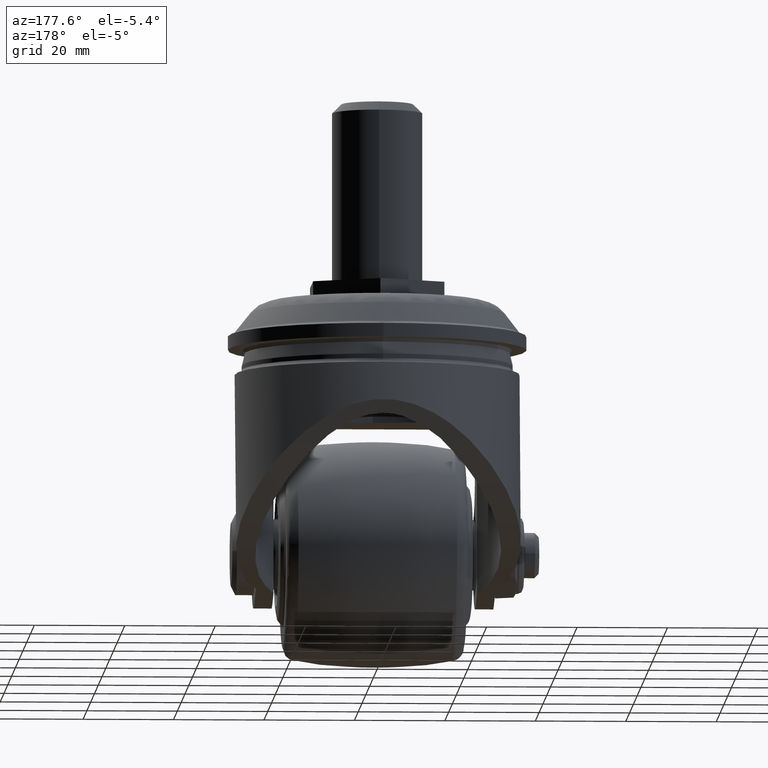
[diagram: clean part render]
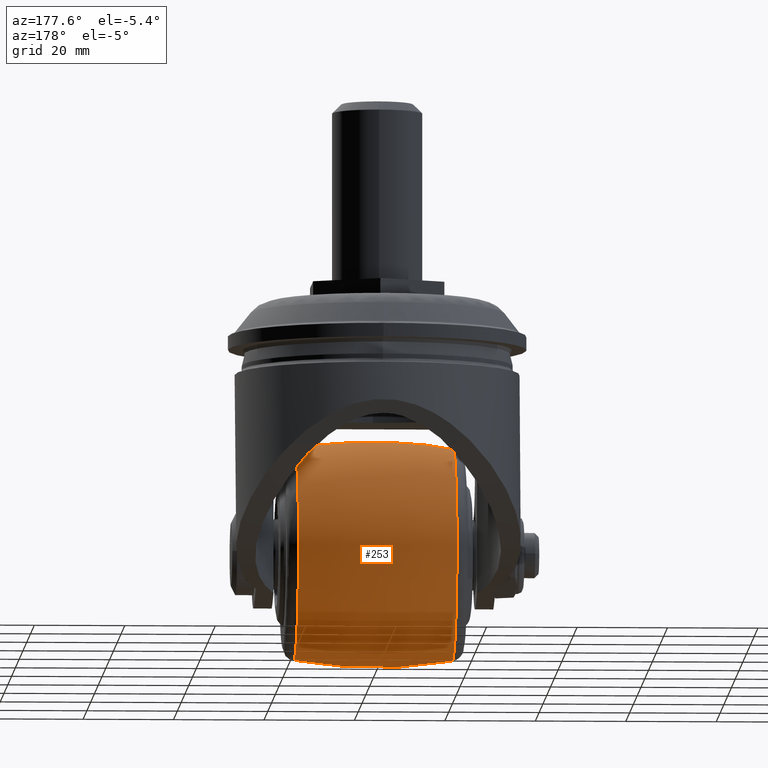
[diagram: same view with one face highlighted and labeled with its STEP entity id]
A machine part, auxiliary view. The second image highlights one B-rep face of the part: STEP entity #253.
In plain terms, the highlighted face is a freeform B-spline surface patch.
Its self-contained STEP definition (entity closure, byte-faithful):
#253=ADVANCED_FACE('',(#1710),#1709,.T.);
#1709=( BOUNDED_SURFACE() B_SPLINE_SURFACE( 2,2,((#3276,#3277,#3278,#3279,#3280),(#3281,#3282,#3283,#3284,#3285),(#3286,#3287,#3288,#3289,#3290)), .UNSPECIFIED.,.F.,.F.,.F.) B_SPLINE_SURFACE_WITH_KNOTS((3,3),(3,2,3),(-1.76167545760E-01,1.76167542388E-01),(0.00000000000E+00,1.57079632679E+00,3.14159265359E+00), .UNSPECIFIED. ) GEOMETRIC_REPRESENTATION_ITEM() RATIONAL_B_SPLINE_SURFACE(((1.00000000000E+00,7.07106781187E-01,1.00000000000E+00,7.07106781187E-01,1.00000000000E+00),(9.84522588857E-01,6.96162598812E-01,9.84522588857E-01,6.96162598812E-01,9.84522588857E-01),(1.00000000000E+00,7.07106781187E-01,1.00000000000E+00,7.07106781187E-01,1.00000000000E+00))) REPRESENTATION_ITEM('') SURFACE() );
#1710=FACE_OUTER_BOUND('',#3291,.T.);
#3276=CARTESIAN_POINT('',(-1.75257731959E+01,2.87197852068E-15,2.34522588562E+01));
#3277=CARTESIAN_POINT('',(-1.75257731959E+01,2.34522588562E+01,2.34522588562E+01));
#3278=CARTESIAN_POINT('',(-1.75257731959E+01,2.34522588562E+01,-2.87197852068E-15));
#3279=CARTESIAN_POINT('',(-1.75257731959E+01,2.34522588562E+01,-2.34522588562E+01));
#3280=CARTESIAN_POINT('',(-1.75257731959E+01,-2.87197852068E-15,-2.34522588562E+01));
#3281=CARTESIAN_POINT('',(-1.71237685365E-07,3.25403290997E-15,2.65720727303E+01));
#3282=CARTESIAN_POINT('',(-1.71237685365E-07,2.65720727303E+01,2.65720727303E+01));
#3283=CARTESIAN_POINT('',(-1.71237685365E-07,2.65720727303E+01,-3.25403290997E-15));
#3284=CARTESIAN_POINT('',(-1.71237685365E-07,2.65720727303E+01,-2.65720727303E+01));
#3285=CARTESIAN_POINT('',(-1.71237685365E-07,-3.25403290997E-15,-2.65720727303E+01));
#3286=CARTESIAN_POINT('',(1.75257728639E+01,2.87197852791E-15,2.34522589153E+01));
#3287=CARTESIAN_POINT('',(1.75257728639E+01,2.34522589153E+01,2.34522589153E+01));
#3288=CARTESIAN_POINT('',(1.75257728639E+01,2.34522589153E+01,-2.87197852791E-15));
#3289=CARTESIAN_POINT('',(1.75257728639E+01,2.34522589153E+01,-2.34522589153E+01));
#3290=CARTESIAN_POINT('',(1.75257728639E+01,-2.87197852791E-15,-2.34522589153E+01));
#3291=EDGE_LOOP('',(#4292,#4293,#4294,#4295));
#4292=ORIENTED_EDGE('',*,*,#4727,.T.);
#4293=ORIENTED_EDGE('',*,*,#4728,.T.);
#4294=ORIENTED_EDGE('',*,*,#4726,.F.);
#4295=ORIENTED_EDGE('',*,*,#4729,.F.);
#4726=EDGE_CURVE('',#6944,#6937,#6957,.T.);
#4727=EDGE_CURVE('',#6963,#6964,#6965,.T.);
#4728=EDGE_CURVE('',#6964,#6937,#6971,.T.);
#4729=EDGE_CURVE('',#6963,#6944,#6977,.T.);
#6937=VERTEX_POINT('',#8936);
#6944=VERTEX_POINT('',#8940);
#6957=CIRCLE('',#8953,2.34522589153E+01);
#6963=VERTEX_POINT('',#8954);
#6964=VERTEX_POINT('',#8955);
#6965=CIRCLE('',#8959,2.34522588562E+01);
#6971=(BOUNDED_CURVE() B_SPLINE_CURVE(2,(#8960,#8961,#8962),.UNSPECIFIED.,.F.,.F.) B_SPLINE_CURVE_WITH_KNOTS((3,3),(-1.76167545760E-01,1.76167542388E-01),.UNSPECIFIED.) CURVE() GEOMETRIC_REPRESENTATION_ITEM() RATIONAL_B_SPLINE_CURVE((1.00000000000E+00,9.84522588857E-01,1.00000000000E+00)) REPRESENTATION_ITEM('') );
#6977=(BOUNDED_CURVE() B_SPLINE_CURVE(2,(#8963,#8964,#8965),.UNSPECIFIED.,.F.,.F.) B_SPLINE_CURVE_WITH_KNOTS((3,3),(-1.76167545760E-01,1.76167542388E-01),.UNSPECIFIED.) CURVE() GEOMETRIC_REPRESENTATION_ITEM() RATIONAL_B_SPLINE_CURVE((1.00000000000E+00,9.84522588857E-01,1.00000000000E+00)) REPRESENTATION_ITEM('') );
#8936=CARTESIAN_POINT('',(1.75257728639E+01,-1.18423789293E-15,2.34522589153E+01));
#8940=CARTESIAN_POINT('',(1.75257728639E+01,0.00000000000E+00,-2.34522589153E+01));
#8950=CARTESIAN_POINT('',(1.75257728639E+01,0.00000000000E+00,0.00000000000E+00));
#8951=DIRECTION('',(1.00000000000E+00,0.00000000000E+00,0.00000000000E+00));
#8952=DIRECTION('',(0.00000000000E+00,-1.22460635382E-16,-1.00000000000E+00));
#8953=AXIS2_PLACEMENT_3D('',#8950,#8951,#8952);
#8954=CARTESIAN_POINT('',(-1.75257731959E+01,0.00000000000E+00,-2.34522588562E+01));
#8955=CARTESIAN_POINT('',(-1.75257731959E+01,-1.18423789293E-15,2.34522588562E+01));
#8956=CARTESIAN_POINT('',(-1.75257731959E+01,0.00000000000E+00,0.00000000000E+00));
#8957=DIRECTION('',(1.00000000000E+00,0.00000000000E+00,0.00000000000E+00));
#8958=DIRECTION('',(0.00000000000E+00,-1.22460635382E-16,-1.00000000000E+00));
#8959=AXIS2_PLACEMENT_3D('',#8956,#8957,#8958);
#8960=CARTESIAN_POINT('',(-1.75257731959E+01,2.87197852068E-15,2.34522588562E+01));
#8961=CARTESIAN_POINT('',(-1.71237685365E-07,3.25403290997E-15,2.65720727303E+01));
#8962=CARTESIAN_POINT('',(1.75257728639E+01,2.87197852791E-15,2.34522589153E+01));
#8963=CARTESIAN_POINT('',(-1.75257731959E+01,-2.87197852068E-15,-2.34522588562E+01));
#8964=CARTESIAN_POINT('',(-1.71237685365E-07,-3.25403290997E-15,-2.65720727303E+01));
#8965=CARTESIAN_POINT('',(1.75257728639E+01,-2.87197852791E-15,-2.34522589153E+01));